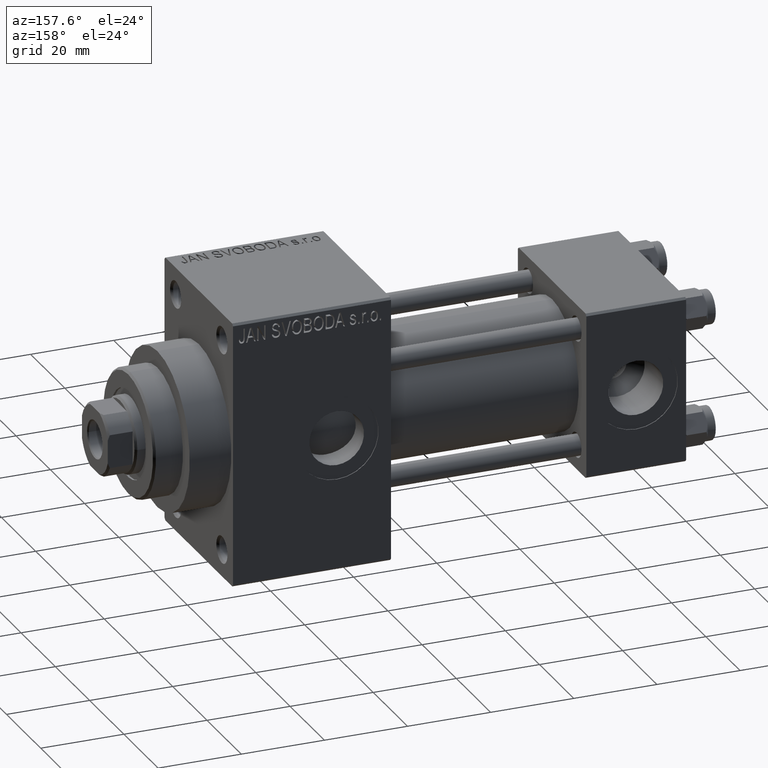
[diagram: clean part render]
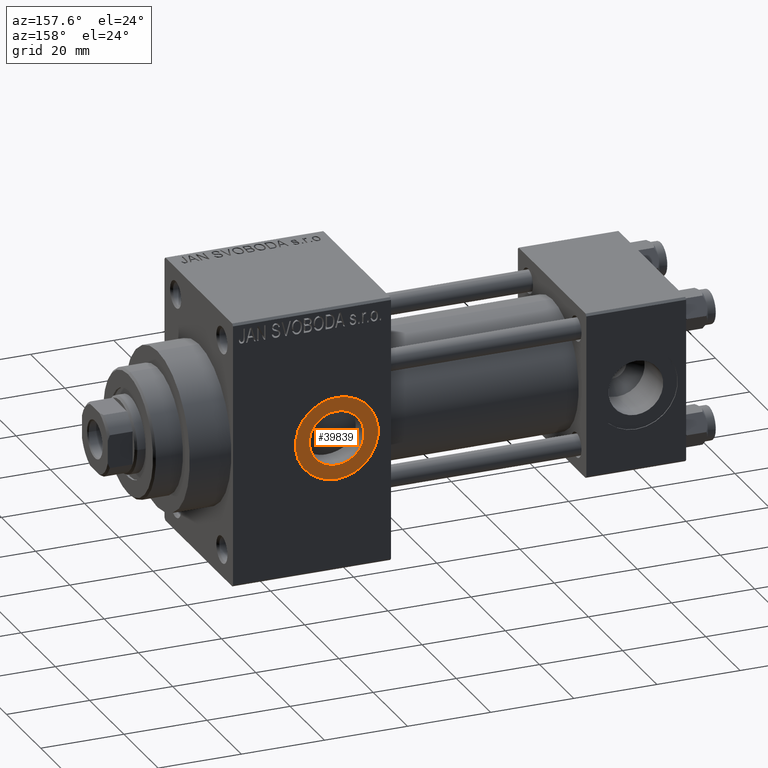
[diagram: same view with one face highlighted and labeled with its STEP entity id]
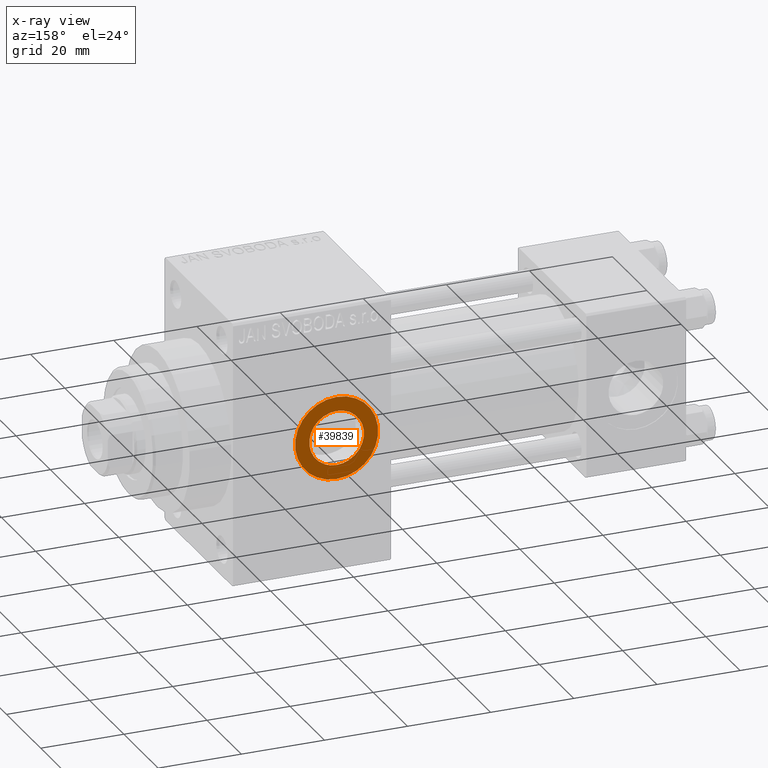
[diagram: x-ray of the same camera — body ghosted, the highlighted face saturated]
A machine part, auxiliary view. The second image highlights one B-rep face of the part: STEP entity #39839.
The next image is the same camera in x-ray: the body ghosted, the highlighted face saturated — about 0% of this face is hidden behind the body in this view.
In plain terms, the highlighted planar face has unit normal (0, 1, 0).
Its self-contained STEP definition (entity closure, byte-faithful):
#3727 = DIRECTION ( 'NONE',  ( 0.000000000000000000, 0.000000000000000000, 1.000000000000000000 ) ) ;
#4417 = CARTESIAN_POINT ( 'NONE',  ( 84.00000000000000000, 19.80000000000000071, 0.000000000000000000 ) ) ;
#4519 = ORIENTED_EDGE ( 'NONE', *, *, #37231, .T. ) ;
#4665 = AXIS2_PLACEMENT_3D ( 'NONE', #47642, #23922, #9141 ) ;
#5116 = CARTESIAN_POINT ( 'NONE',  ( 84.00000000000000000, 19.80000000000000071, -10.00000000000153300 ) ) ;
#6908 = VERTEX_POINT ( 'NONE', #27494 ) ;
#7416 = VERTEX_POINT ( 'NONE', #41647 ) ;
#7703 = CIRCLE ( 'NONE', #35222, 6.580000000001541061 ) ;
#8234 = ORIENTED_EDGE ( 'NONE', *, *, #16864, .F. ) ;
#9141 = DIRECTION ( 'NONE',  ( 0.000000000000000000, 0.000000000000000000, 1.000000000000000000 ) ) ;
#11101 = EDGE_LOOP ( 'NONE', ( #33764, #8234 ) ) ;
#14066 = DIRECTION ( 'NONE',  ( 0.000000000000000000, 0.000000000000000000, 1.000000000000000000 ) ) ;
#14816 = EDGE_LOOP ( 'NONE', ( #33277, #4519 ) ) ;
#16084 = CARTESIAN_POINT ( 'NONE',  ( 84.00000000000000000, 19.80000000000000071, 6.580000000001541061 ) ) ;
#16864 = EDGE_CURVE ( 'NONE', #6908, #28070, #7703, .T. ) ;
#18614 = EDGE_CURVE ( 'NONE', #28070, #6908, #26612, .T. ) ;
#22171 = FACE_OUTER_BOUND ( 'NONE', #14816, .T. ) ;
#23149 = PLANE ( 'NONE',  #46980 ) ;
#23922 = DIRECTION ( 'NONE',  ( 0.000000000000000000, 1.000000000000000000, 0.000000000000000000 ) ) ;
#25377 = DIRECTION ( 'NONE',  ( 0.000000000000000000, 1.000000000000000000, 0.000000000000000000 ) ) ;
#26105 = DIRECTION ( 'NONE',  ( 0.000000000000000000, 1.000000000000000000, 0.000000000000000000 ) ) ;
#26108 = DIRECTION ( 'NONE',  ( 0.000000000000000000, 1.000000000000000000, 0.000000000000000000 ) ) ;
#26612 = CIRCLE ( 'NONE', #28207, 6.580000000001541061 ) ;
#27384 = CIRCLE ( 'NONE', #33650, 10.00000000000153300 ) ;
#27494 = CARTESIAN_POINT ( 'NONE',  ( 84.00000000000000000, 19.80000000000000071, -6.580000000001541061 ) ) ;
#28070 = VERTEX_POINT ( 'NONE', #16084 ) ;
#28207 = AXIS2_PLACEMENT_3D ( 'NONE', #40612, #25377, #32742 ) ;
#28392 = VERTEX_POINT ( 'NONE', #5116 ) ;
#32742 = DIRECTION ( 'NONE',  ( 0.000000000000000000, 0.000000000000000000, 1.000000000000000000 ) ) ;
#33277 = ORIENTED_EDGE ( 'NONE', *, *, #43347, .T. ) ;
#33650 = AXIS2_PLACEMENT_3D ( 'NONE', #36690, #41115, #14066 ) ;
#33729 = CARTESIAN_POINT ( 'NONE',  ( 84.00000000000000000, 19.80000000000000071, 0.000000000000000000 ) ) ;
#33764 = ORIENTED_EDGE ( 'NONE', *, *, #18614, .F. ) ;
#35222 = AXIS2_PLACEMENT_3D ( 'NONE', #33729, #26105, #3727 ) ;
#36116 = CIRCLE ( 'NONE', #4665, 10.00000000000153300 ) ;
#36690 = CARTESIAN_POINT ( 'NONE',  ( 84.00000000000000000, 19.80000000000000071, 0.000000000000000000 ) ) ;
#37231 = EDGE_CURVE ( 'NONE', #28392, #7416, #27384, .T. ) ;
#39839 = ADVANCED_FACE ( 'NONE', ( #45530, #22171 ), #23149, .T. ) ;
#40612 = CARTESIAN_POINT ( 'NONE',  ( 84.00000000000000000, 19.80000000000000071, 0.000000000000000000 ) ) ;
#41115 = DIRECTION ( 'NONE',  ( 0.000000000000000000, 1.000000000000000000, 0.000000000000000000 ) ) ;
#41647 = CARTESIAN_POINT ( 'NONE',  ( 84.00000000000000000, 19.80000000000000071, 10.00000000000153300 ) ) ;
#43347 = EDGE_CURVE ( 'NONE', #7416, #28392, #36116, .T. ) ;
#45052 = DIRECTION ( 'NONE',  ( 0.000000000000000000, -0.000000000000000000, 1.000000000000000000 ) ) ;
#45530 = FACE_BOUND ( 'NONE', #11101, .T. ) ;
#46980 = AXIS2_PLACEMENT_3D ( 'NONE', #4417, #26108, #45052 ) ;
#47642 = CARTESIAN_POINT ( 'NONE',  ( 84.00000000000000000, 19.80000000000000071, 0.000000000000000000 ) ) ;